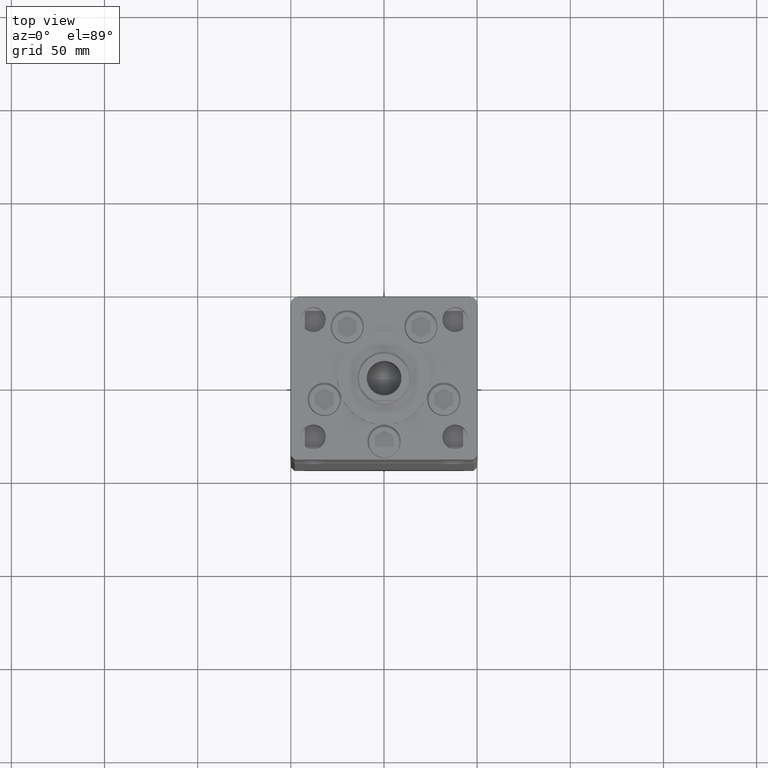
[diagram: clean part render]
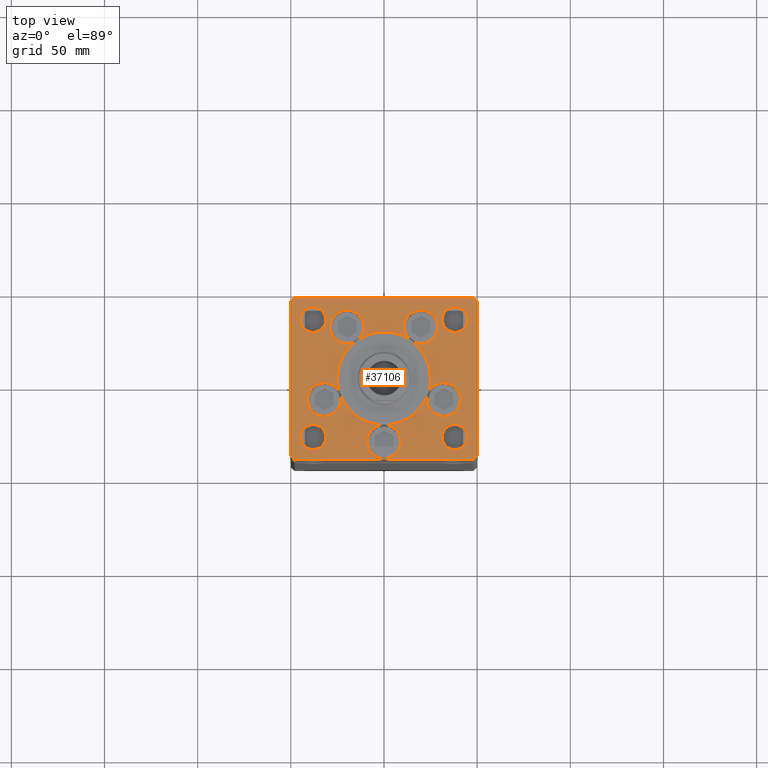
[diagram: same view with one face highlighted and labeled with its STEP entity id]
A machine part, top view. The second image highlights one B-rep face of the part: STEP entity #37106.
In plain terms, the highlighted planar face has unit normal (0, 0, 1).
Its self-contained STEP definition (entity closure, byte-faithful):
#187 = LINE ( 'NONE', #32982, #38773 ) ;
#683 = VECTOR ( 'NONE', #42307, 1000.000000000000000 ) ;
#785 = DIRECTION ( 'NONE',  ( 0.000000000000000000, 0.000000000000000000, 1.000000000000000000 ) ) ;
#903 = ORIENTED_EDGE ( 'NONE', *, *, #35366, .F. ) ;
#1038 = VERTEX_POINT ( 'NONE', #23944 ) ;
#1337 = LINE ( 'NONE', #5392, #2627 ) ;
#1735 = DIRECTION ( 'NONE',  ( 0.000000000000000000, 0.000000000000000000, 1.000000000000000000 ) ) ;
#1873 = CARTESIAN_POINT ( 'NONE',  ( -32.05550741379015989, -11.33333333333332860, 0.000000000000000000 ) ) ;
#1930 = CARTESIAN_POINT ( 'NONE',  ( 0.000000000000000000, -6.938893903907228378E-15, 0.000000000000000000 ) ) ;
#2221 = AXIS2_PLACEMENT_3D ( 'NONE', #42749, #37213, #29153 ) ;
#2416 = DIRECTION ( 'NONE',  ( 0.000000000000000000, 0.000000000000000000, 1.000000000000000000 ) ) ;
#2627 = VECTOR ( 'NONE', #50515, 1000.000000000000000 ) ;
#2665 = ORIENTED_EDGE ( 'NONE', *, *, #19546, .T. ) ;
#2676 = CARTESIAN_POINT ( 'NONE',  ( 44.75000000000000711, -31.50000000000000711, 0.000000000000000000 ) ) ;
#2713 = AXIS2_PLACEMENT_3D ( 'NONE', #22474, #14391, #26773 ) ;
#2918 = DIRECTION ( 'NONE',  ( -1.000000000000000000, 0.000000000000000000, 0.000000000000000000 ) ) ;
#2945 = ORIENTED_EDGE ( 'NONE', *, *, #50621, .F. ) ;
#3041 = VERTEX_POINT ( 'NONE', #15536 ) ;
#3121 = DIRECTION ( 'NONE',  ( 0.000000000000000000, 0.000000000000000000, 1.000000000000000000 ) ) ;
#3254 = CARTESIAN_POINT ( 'NONE',  ( -25.00000000000000000, -6.938893903907228378E-15, 0.000000000000000000 ) ) ;
#3648 = CARTESIAN_POINT ( 'NONE',  ( 38.00000000000000000, 31.50000000000000000, 0.000000000000000000 ) ) ;
#3977 = DIRECTION ( 'NONE',  ( 0.000000000000000000, 0.000000000000000000, 1.000000000000000000 ) ) ;
#4172 = CIRCLE ( 'NONE', #4205, 9.000000000000001776 ) ;
#4205 = AXIS2_PLACEMENT_3D ( 'NONE', #10675, #23051, #27088 ) ;
#4346 = EDGE_CURVE ( 'NONE', #30696, #17513, #26737, .T. ) ;
#4392 = EDGE_CURVE ( 'NONE', #50569, #3041, #30744, .T. ) ;
#4401 = FACE_BOUND ( 'NONE', #27201, .T. ) ;
#4457 = ORIENTED_EDGE ( 'NONE', *, *, #17597, .F. ) ;
#4492 = DIRECTION ( 'NONE',  ( -1.000000000000000000, -2.891205793294678326E-16, 0.000000000000000000 ) ) ;
#4815 = CARTESIAN_POINT ( 'NONE',  ( -23.05550741379015633, -11.33333333333332860, 0.000000000000000000 ) ) ;
#4838 = AXIS2_PLACEMENT_3D ( 'NONE', #12989, #13250, #29645 ) ;
#5063 = VECTOR ( 'NONE', #6584, 1000.000000000000000 ) ;
#5183 = AXIS2_PLACEMENT_3D ( 'NONE', #1873, #18288, #17232 ) ;
#5392 = CARTESIAN_POINT ( 'NONE',  ( -50.00000000000000000, -41.50000000000004263, 0.000000000000000000 ) ) ;
#5918 = DIRECTION ( 'NONE',  ( 1.000000000000000000, 0.000000000000000000, 0.000000000000000000 ) ) ;
#5967 = EDGE_LOOP ( 'NONE', ( #26853, #52229 ) ) ;
#5986 = DIRECTION ( 'NONE',  ( 1.000000000000000000, 0.000000000000000000, 0.000000000000000000 ) ) ;
#6526 = CIRCLE ( 'NONE', #28813, 25.00000000000000000 ) ;
#6584 = DIRECTION ( 'NONE',  ( 1.000000000000000000, 1.156482317317871331E-15, 0.000000000000000000 ) ) ;
#7155 = DIRECTION ( 'NONE',  ( 1.000000000000000000, 0.000000000000000000, 0.000000000000000000 ) ) ;
#7204 = CARTESIAN_POINT ( 'NONE',  ( 28.82068048781374969, 27.62499999999998934, 0.000000000000000000 ) ) ;
#7380 = DIRECTION ( 'NONE',  ( 0.000000000000000000, 0.000000000000000000, 1.000000000000000000 ) ) ;
#7449 = CARTESIAN_POINT ( 'NONE',  ( -31.25000000000000711, -31.50000000000000711, 0.000000000000000000 ) ) ;
#7614 = DIRECTION ( 'NONE',  ( 0.7071067811865474617, 0.7071067811865474617, 0.000000000000000000 ) ) ;
#7661 = CIRCLE ( 'NONE', #24834, 9.000000000000001776 ) ;
#8187 = CARTESIAN_POINT ( 'NONE',  ( 31.25000000000000000, 31.50000000000000000, 0.000000000000000000 ) ) ;
#8635 = ORIENTED_EDGE ( 'NONE', *, *, #52923, .F. ) ;
#9384 = CARTESIAN_POINT ( 'NONE',  ( -41.05550741379015989, -11.33333333333332682, 0.000000000000000000 ) ) ;
#9794 = CIRCLE ( 'NONE', #22703, 6.749999999999999112 ) ;
#9917 = EDGE_CURVE ( 'NONE', #29590, #42992, #45315, .T. ) ;
#10021 = ORIENTED_EDGE ( 'NONE', *, *, #38461, .T. ) ;
#10154 = AXIS2_PLACEMENT_3D ( 'NONE', #49462, #37125, #11859 ) ;
#10675 = CARTESIAN_POINT ( 'NONE',  ( 32.05550741379015989, -11.33333333333332860, 0.000000000000000000 ) ) ;
#11115 = CARTESIAN_POINT ( 'NONE',  ( 0.000000000000000000, -34.00000000000000000, 0.000000000000000000 ) ) ;
#11283 = CARTESIAN_POINT ( 'NONE',  ( -48.00000000000000000, 43.49999999999997158, 0.000000000000000000 ) ) ;
#11372 = CARTESIAN_POINT ( 'NONE',  ( 0.000000000000000000, -6.938893903907228378E-15, 0.000000000000000000 ) ) ;
#11414 = DIRECTION ( 'NONE',  ( 0.000000000000000000, 0.000000000000000000, 1.000000000000000000 ) ) ;
#11725 = AXIS2_PLACEMENT_3D ( 'NONE', #1930, #27453, #22902 ) ;
#11781 = CARTESIAN_POINT ( 'NONE',  ( -50.00000000000000000, -41.50000000000004263, 0.000000000000000000 ) ) ;
#11859 = DIRECTION ( 'NONE',  ( -1.000000000000000000, 0.000000000000000000, 0.000000000000000000 ) ) ;
#11973 = VERTEX_POINT ( 'NONE', #36226 ) ;
#12154 = CIRCLE ( 'NONE', #18160, 25.00000000000000000 ) ;
#12302 = EDGE_LOOP ( 'NONE', ( #52359, #10021, #39088, #33288, #2665, #29705, #32081, #28448 ) ) ;
#12469 = EDGE_CURVE ( 'NONE', #43314, #31940, #7661, .T. ) ;
#12579 = DIRECTION ( 'NONE',  ( 1.000000000000000000, 0.000000000000000000, 0.000000000000000000 ) ) ;
#12841 = CIRCLE ( 'NONE', #38575, 25.00000000000000000 ) ;
#12885 = CIRCLE ( 'NONE', #42914, 6.749999999999999112 ) ;
#12895 = DIRECTION ( 'NONE',  ( 0.000000000000000000, 0.000000000000000000, 1.000000000000000000 ) ) ;
#12989 = CARTESIAN_POINT ( 'NONE',  ( 0.000000000000000000, -34.00000000000000000, 0.000000000000000000 ) ) ;
#13153 = VERTEX_POINT ( 'NONE', #39905 ) ;
#13250 = DIRECTION ( 'NONE',  ( 0.000000000000000000, 0.000000000000000000, 1.000000000000000000 ) ) ;
#13517 = CARTESIAN_POINT ( 'NONE',  ( -44.75000000000000000, 31.50000000000000000, 0.000000000000000000 ) ) ;
#13552 = CARTESIAN_POINT ( 'NONE',  ( -50.00000000000000711, 41.49999999999999289, 0.000000000000000000 ) ) ;
#14269 = CIRCLE ( 'NONE', #4838, 9.000000000000000000 ) ;
#14391 = DIRECTION ( 'NONE',  ( 0.000000000000000000, 0.000000000000000000, 1.000000000000000000 ) ) ;
#14542 = EDGE_CURVE ( 'NONE', #49208, #40339, #15425, .T. ) ;
#14911 = CIRCLE ( 'NONE', #43203, 9.000000000000001776 ) ;
#15310 = VERTEX_POINT ( 'NONE', #7204 ) ;
#15313 = CARTESIAN_POINT ( 'NONE',  ( 38.00000000000000000, 31.50000000000000000, 0.000000000000000000 ) ) ;
#15327 = CARTESIAN_POINT ( 'NONE',  ( 32.05550741379015989, -11.33333333333332860, 0.000000000000000000 ) ) ;
#15425 = CIRCLE ( 'NONE', #52346, 9.000000000000000000 ) ;
#15536 = CARTESIAN_POINT ( 'NONE',  ( -44.75000000000000711, -31.50000000000000711, 0.000000000000000000 ) ) ;
#15693 = AXIS2_PLACEMENT_3D ( 'NONE', #17923, #18454, #34309 ) ;
#15979 = DIRECTION ( 'NONE',  ( -0.000000000000000000, 0.000000000000000000, 1.000000000000000000 ) ) ;
#16165 = CARTESIAN_POINT ( 'NONE',  ( 23.57022603955158502, -8.333333333333332149, 0.000000000000000000 ) ) ;
#16196 = CIRCLE ( 'NONE', #10154, 6.749999999999999112 ) ;
#16230 = CARTESIAN_POINT ( 'NONE',  ( 48.00000000000000711, -43.49999999999992184, 0.000000000000000000 ) ) ;
#16247 = FACE_BOUND ( 'NONE', #5967, .T. ) ;
#16434 = VECTOR ( 'NONE', #27487, 999.9999999999998863 ) ;
#16511 = CARTESIAN_POINT ( 'NONE',  ( 50.00000000000000000, 41.50000000000000711, 0.000000000000000000 ) ) ;
#16676 = ORIENTED_EDGE ( 'NONE', *, *, #37301, .T. ) ;
#16863 = EDGE_CURVE ( 'NONE', #30968, #23896, #44411, .T. ) ;
#16947 = CARTESIAN_POINT ( 'NONE',  ( -19.82068048781374969, 27.62499999999998934, 0.000000000000000000 ) ) ;
#17232 = DIRECTION ( 'NONE',  ( 1.000000000000000000, 0.000000000000000000, 0.000000000000000000 ) ) ;
#17243 = ORIENTED_EDGE ( 'NONE', *, *, #44291, .F. ) ;
#17262 = DIRECTION ( 'NONE',  ( 0.000000000000000000, 0.000000000000000000, 1.000000000000000000 ) ) ;
#17513 = VERTEX_POINT ( 'NONE', #11781 ) ;
#17597 = EDGE_CURVE ( 'NONE', #25506, #49711, #14911, .T. ) ;
#17923 = CARTESIAN_POINT ( 'NONE',  ( 19.82068048781374969, 27.62499999999998934, 0.000000000000000000 ) ) ;
#17936 = EDGE_CURVE ( 'NONE', #47641, #11973, #45802, .T. ) ;
#18152 = AXIS2_PLACEMENT_3D ( 'NONE', #31970, #53175, #20407 ) ;
#18160 = AXIS2_PLACEMENT_3D ( 'NONE', #11372, #48431, #40113 ) ;
#18288 = DIRECTION ( 'NONE',  ( 0.000000000000000000, 0.000000000000000000, 1.000000000000000000 ) ) ;
#18437 = CARTESIAN_POINT ( 'NONE',  ( -48.00000000000000711, -43.50000000000002842, 0.000000000000000000 ) ) ;
#18454 = DIRECTION ( 'NONE',  ( 0.000000000000000000, 0.000000000000000000, 1.000000000000000000 ) ) ;
#18467 = VERTEX_POINT ( 'NONE', #16511 ) ;
#18642 = DIRECTION ( 'NONE',  ( -1.000000000000000000, 0.000000000000000000, 0.000000000000000000 ) ) ;
#19190 = CARTESIAN_POINT ( 'NONE',  ( -38.00000000000000711, -31.50000000000000711, 0.000000000000000000 ) ) ;
#19368 = VERTEX_POINT ( 'NONE', #36658 ) ;
#19546 = EDGE_CURVE ( 'NONE', #18467, #19563, #26437, .T. ) ;
#19563 = VERTEX_POINT ( 'NONE', #35284 ) ;
#19833 = AXIS2_PLACEMENT_3D ( 'NONE', #25842, #42211, #5918 ) ;
#19859 = ORIENTED_EDGE ( 'NONE', *, *, #20430, .F. ) ;
#20142 = CARTESIAN_POINT ( 'NONE',  ( 31.25000000000000711, -31.50000000000000711, 0.000000000000000000 ) ) ;
#20243 = CARTESIAN_POINT ( 'NONE',  ( 9.000000000000000000, -34.00000000000000000, 0.000000000000000000 ) ) ;
#20273 = FACE_BOUND ( 'NONE', #28135, .T. ) ;
#20325 = CARTESIAN_POINT ( 'NONE',  ( -9.000000000000000000, -34.00000000000000000, 0.000000000000000000 ) ) ;
#20407 = DIRECTION ( 'NONE',  ( 1.000000000000000000, 0.000000000000000000, 0.000000000000000000 ) ) ;
#20430 = EDGE_CURVE ( 'NONE', #3041, #50569, #46464, .T. ) ;
#20759 = CARTESIAN_POINT ( 'NONE',  ( 0.000000000000000000, -34.00000000000000000, 0.000000000000000000 ) ) ;
#20916 = EDGE_CURVE ( 'NONE', #25685, #40339, #12154, .T. ) ;
#21638 = CARTESIAN_POINT ( 'NONE',  ( -14.57402977045128978, 20.31249999999999289, 0.000000000000000000 ) ) ;
#21694 = CARTESIAN_POINT ( 'NONE',  ( -19.82068048781374969, 27.62499999999998934, 0.000000000000000000 ) ) ;
#22145 = CARTESIAN_POINT ( 'NONE',  ( 50.00000000000000000, -41.49999999999992895, 0.000000000000000000 ) ) ;
#22185 = AXIS2_PLACEMENT_3D ( 'NONE', #20759, #17262, #25592 ) ;
#22447 = EDGE_CURVE ( 'NONE', #1038, #31096, #9794, .T. ) ;
#22472 = LINE ( 'NONE', #18437, #5063 ) ;
#22474 = CARTESIAN_POINT ( 'NONE',  ( -38.00000000000000711, -31.50000000000000711, 0.000000000000000000 ) ) ;
#22588 = CARTESIAN_POINT ( 'NONE',  ( 44.75000000000000000, 31.50000000000000000, 0.000000000000000000 ) ) ;
#22703 = AXIS2_PLACEMENT_3D ( 'NONE', #52617, #36237, #2918 ) ;
#22861 = ORIENTED_EDGE ( 'NONE', *, *, #17936, .F. ) ;
#22878 = CIRCLE ( 'NONE', #11725, 25.00000000000000000 ) ;
#22902 = DIRECTION ( 'NONE',  ( 1.000000000000000000, 0.000000000000000000, 0.000000000000000000 ) ) ;
#23051 = DIRECTION ( 'NONE',  ( 0.000000000000000000, 0.000000000000000000, 1.000000000000000000 ) ) ;
#23164 = CARTESIAN_POINT ( 'NONE',  ( 23.05550741379015633, -11.33333333333332682, 0.000000000000000000 ) ) ;
#23448 = CARTESIAN_POINT ( 'NONE',  ( 19.82068048781374969, 27.62499999999998934, 0.000000000000000000 ) ) ;
#23772 = EDGE_CURVE ( 'NONE', #50400, #49208, #45019, .T. ) ;
#23896 = VERTEX_POINT ( 'NONE', #22145 ) ;
#23944 = CARTESIAN_POINT ( 'NONE',  ( -31.25000000000000000, 31.50000000000000000, 0.000000000000000000 ) ) ;
#24309 = FACE_BOUND ( 'NONE', #39841, .T. ) ;
#24323 = CARTESIAN_POINT ( 'NONE',  ( -19.82068048781374969, 27.62499999999998934, 0.000000000000000000 ) ) ;
#24409 = EDGE_CURVE ( 'NONE', #19368, #30696, #31716, .T. ) ;
#24834 = AXIS2_PLACEMENT_3D ( 'NONE', #15327, #2416, #27160 ) ;
#24925 = DIRECTION ( 'NONE',  ( 0.000000000000000000, 0.000000000000000000, 1.000000000000000000 ) ) ;
#24960 = CARTESIAN_POINT ( 'NONE',  ( -32.05550741379015989, -11.33333333333332860, 0.000000000000000000 ) ) ;
#25001 = DIRECTION ( 'NONE',  ( 1.000000000000000000, 0.000000000000000000, 0.000000000000000000 ) ) ;
#25105 = FACE_BOUND ( 'NONE', #47635, .T. ) ;
#25244 = EDGE_CURVE ( 'NONE', #43314, #13153, #48537, .T. ) ;
#25427 = CARTESIAN_POINT ( 'NONE',  ( 19.82068048781374969, 27.62499999999998934, 0.000000000000000000 ) ) ;
#25463 = EDGE_CURVE ( 'NONE', #13153, #25685, #6526, .T. ) ;
#25506 = VERTEX_POINT ( 'NONE', #9384 ) ;
#25543 = ORIENTED_EDGE ( 'NONE', *, *, #40174, .F. ) ;
#25592 = DIRECTION ( 'NONE',  ( 1.000000000000000000, 0.000000000000000000, 0.000000000000000000 ) ) ;
#25610 = CIRCLE ( 'NONE', #43598, 9.000000000000000000 ) ;
#25685 = VERTEX_POINT ( 'NONE', #30875 ) ;
#25842 = CARTESIAN_POINT ( 'NONE',  ( 32.05550741379015989, -11.33333333333332860, 0.000000000000000000 ) ) ;
#25863 = ORIENTED_EDGE ( 'NONE', *, *, #32748, .F. ) ;
#25985 = CARTESIAN_POINT ( 'NONE',  ( 50.00000000000000000, -41.49999999999992895, 0.000000000000000000 ) ) ;
#26009 = VERTEX_POINT ( 'NONE', #8187 ) ;
#26329 = VERTEX_POINT ( 'NONE', #2676 ) ;
#26437 = LINE ( 'NONE', #50860, #16434 ) ;
#26524 = CARTESIAN_POINT ( 'NONE',  ( 0.000000000000000000, -6.938893903907228378E-15, 0.000000000000000000 ) ) ;
#26737 = LINE ( 'NONE', #13552, #683 ) ;
#26773 = DIRECTION ( 'NONE',  ( 1.000000000000000000, 0.000000000000000000, 0.000000000000000000 ) ) ;
#26853 = ORIENTED_EDGE ( 'NONE', *, *, #29552, .F. ) ;
#27088 = DIRECTION ( 'NONE',  ( 1.000000000000000000, 0.000000000000000000, 0.000000000000000000 ) ) ;
#27160 = DIRECTION ( 'NONE',  ( 1.000000000000000000, 0.000000000000000000, 0.000000000000000000 ) ) ;
#27201 = EDGE_LOOP ( 'NONE', ( #33815, #39832 ) ) ;
#27453 = DIRECTION ( 'NONE',  ( 0.000000000000000000, 0.000000000000000000, 1.000000000000000000 ) ) ;
#27487 = DIRECTION ( 'NONE',  ( -0.7071067811865512365, 0.7071067811865439090, 0.000000000000000000 ) ) ;
#27745 = CARTESIAN_POINT ( 'NONE',  ( -28.82068048781374969, 27.62499999999998934, 0.000000000000000000 ) ) ;
#28030 = DIRECTION ( 'NONE',  ( 0.000000000000000000, 0.000000000000000000, 1.000000000000000000 ) ) ;
#28135 = EDGE_LOOP ( 'NONE', ( #36526, #39004, #8635, #25863, #48912, #43911, #45883, #17243, #36540, #52632, #903, #38969, #42371, #22861, #44002, #4457, #31683, #46702, #25543, #49909, #52764, #2945 ) ) ;
#28341 = CIRCLE ( 'NONE', #46338, 6.749999999999999112 ) ;
#28448 = ORIENTED_EDGE ( 'NONE', *, *, #4346, .T. ) ;
#28497 = CIRCLE ( 'NONE', #36196, 9.000000000000000000 ) ;
#28813 = AXIS2_PLACEMENT_3D ( 'NONE', #32791, #785, #33591 ) ;
#29153 = DIRECTION ( 'NONE',  ( 1.000000000000000000, 0.000000000000000000, 0.000000000000000000 ) ) ;
#29411 = EDGE_CURVE ( 'NONE', #37772, #26329, #46924, .T. ) ;
#29427 = CIRCLE ( 'NONE', #15693, 8.999999999999998224 ) ;
#29480 = LINE ( 'NONE', #25985, #32568 ) ;
#29552 = EDGE_CURVE ( 'NONE', #36701, #26009, #51123, .T. ) ;
#29590 = VERTEX_POINT ( 'NONE', #20325 ) ;
#29645 = DIRECTION ( 'NONE',  ( 1.000000000000000000, 0.000000000000000000, 0.000000000000000000 ) ) ;
#29705 = ORIENTED_EDGE ( 'NONE', *, *, #50646, .T. ) ;
#29939 = EDGE_CURVE ( 'NONE', #11973, #29590, #14269, .T. ) ;
#30696 = VERTEX_POINT ( 'NONE', #35080 ) ;
#30731 = VERTEX_POINT ( 'NONE', #50645 ) ;
#30744 = CIRCLE ( 'NONE', #34151, 6.749999999999999112 ) ;
#30875 = CARTESIAN_POINT ( 'NONE',  ( 14.57402977045128623, 20.31249999999998579, 0.000000000000000000 ) ) ;
#30968 = VERTEX_POINT ( 'NONE', #37189 ) ;
#31096 = VERTEX_POINT ( 'NONE', #13517 ) ;
#31393 = CARTESIAN_POINT ( 'NONE',  ( -10.82068048781375147, 27.62499999999998934, 0.000000000000000000 ) ) ;
#31683 = ORIENTED_EDGE ( 'NONE', *, *, #44484, .F. ) ;
#31716 = LINE ( 'NONE', #11283, #44146 ) ;
#31845 = CARTESIAN_POINT ( 'NONE',  ( -23.57022603955158502, -8.333333333333332149, 0.000000000000000000 ) ) ;
#31893 = EDGE_CURVE ( 'NONE', #41459, #47641, #22878, .T. ) ;
#31940 = VERTEX_POINT ( 'NONE', #23164 ) ;
#31970 = CARTESIAN_POINT ( 'NONE',  ( -32.05550741379015989, -11.33333333333332860, 0.000000000000000000 ) ) ;
#31979 = DIRECTION ( 'NONE',  ( -0.000000000000000000, -0.000000000000000000, -1.000000000000000000 ) ) ;
#32081 = ORIENTED_EDGE ( 'NONE', *, *, #24409, .T. ) ;
#32568 = VECTOR ( 'NONE', #38319, 1000.000000000000000 ) ;
#32653 = DIRECTION ( 'NONE',  ( 1.000000000000000000, 0.000000000000000000, 0.000000000000000000 ) ) ;
#32748 = EDGE_CURVE ( 'NONE', #25685, #15310, #40922, .T. ) ;
#32789 = DIRECTION ( 'NONE',  ( 0.000000000000000000, 0.000000000000000000, 1.000000000000000000 ) ) ;
#32791 = CARTESIAN_POINT ( 'NONE',  ( 0.000000000000000000, -6.938893903907228378E-15, 0.000000000000000000 ) ) ;
#32915 = CARTESIAN_POINT ( 'NONE',  ( 0.000000000000000000, -6.938893903907228378E-15, 0.000000000000000000 ) ) ;
#32982 = CARTESIAN_POINT ( 'NONE',  ( 47.99999999999999289, 43.50000000000000000, 0.000000000000000000 ) ) ;
#33288 = ORIENTED_EDGE ( 'NONE', *, *, #38932, .T. ) ;
#33591 = DIRECTION ( 'NONE',  ( 1.000000000000000000, 0.000000000000000000, 0.000000000000000000 ) ) ;
#33815 = ORIENTED_EDGE ( 'NONE', *, *, #45152, .T. ) ;
#34151 = AXIS2_PLACEMENT_3D ( 'NONE', #19190, #28030, #35572 ) ;
#34309 = DIRECTION ( 'NONE',  ( 1.000000000000000000, 0.000000000000000000, 0.000000000000000000 ) ) ;
#35080 = CARTESIAN_POINT ( 'NONE',  ( -50.00000000000000711, 41.49999999999999289, 0.000000000000000000 ) ) ;
#35284 = CARTESIAN_POINT ( 'NONE',  ( 47.99999999999999289, 43.50000000000000000, 0.000000000000000000 ) ) ;
#35366 = EDGE_CURVE ( 'NONE', #42992, #11973, #25610, .T. ) ;
#35572 = DIRECTION ( 'NONE',  ( 1.000000000000000000, 0.000000000000000000, 0.000000000000000000 ) ) ;
#35790 = AXIS2_PLACEMENT_3D ( 'NONE', #46133, #42121, #41057 ) ;
#36046 = EDGE_CURVE ( 'NONE', #37252, #25685, #43628, .T. ) ;
#36196 = AXIS2_PLACEMENT_3D ( 'NONE', #21694, #24925, #41306 ) ;
#36226 = CARTESIAN_POINT ( 'NONE',  ( 0.000000000000000000, -25.00000000000000000, 0.000000000000000000 ) ) ;
#36237 = DIRECTION ( 'NONE',  ( -0.000000000000000000, -0.000000000000000000, -1.000000000000000000 ) ) ;
#36446 = DIRECTION ( 'NONE',  ( 0.000000000000000000, 0.000000000000000000, 1.000000000000000000 ) ) ;
#36526 = ORIENTED_EDGE ( 'NONE', *, *, #20916, .F. ) ;
#36540 = ORIENTED_EDGE ( 'NONE', *, *, #12469, .F. ) ;
#36658 = CARTESIAN_POINT ( 'NONE',  ( -48.00000000000000000, 43.49999999999997158, 0.000000000000000000 ) ) ;
#36701 = VERTEX_POINT ( 'NONE', #22588 ) ;
#37106 = ADVANCED_FACE ( 'NONE', ( #20273, #25105, #16247, #24309, #41215, #4401 ), #44694, .T. ) ;
#37125 = DIRECTION ( 'NONE',  ( -0.000000000000000000, -0.000000000000000000, -1.000000000000000000 ) ) ;
#37189 = CARTESIAN_POINT ( 'NONE',  ( 48.00000000000000711, -43.49999999999992184, 0.000000000000000000 ) ) ;
#37213 = DIRECTION ( 'NONE',  ( 0.000000000000000000, 0.000000000000000000, 1.000000000000000000 ) ) ;
#37252 = VERTEX_POINT ( 'NONE', #49803 ) ;
#37301 = EDGE_CURVE ( 'NONE', #31096, #1038, #16196, .T. ) ;
#37507 = AXIS2_PLACEMENT_3D ( 'NONE', #23448, #47343, #5986 ) ;
#37707 = CIRCLE ( 'NONE', #46271, 25.00000000000000000 ) ;
#37772 = VERTEX_POINT ( 'NONE', #20142 ) ;
#38027 = EDGE_CURVE ( 'NONE', #43888, #43314, #4172, .T. ) ;
#38319 = DIRECTION ( 'NONE',  ( 0.000000000000000000, 1.000000000000000000, 0.000000000000000000 ) ) ;
#38461 = EDGE_CURVE ( 'NONE', #30731, #30968, #22472, .T. ) ;
#38575 = AXIS2_PLACEMENT_3D ( 'NONE', #26524, #32789, #42885 ) ;
#38694 = CIRCLE ( 'NONE', #18152, 9.000000000000001776 ) ;
#38773 = VECTOR ( 'NONE', #4492, 1000.000000000000000 ) ;
#38932 = EDGE_CURVE ( 'NONE', #23896, #18467, #29480, .T. ) ;
#38969 = ORIENTED_EDGE ( 'NONE', *, *, #9917, .F. ) ;
#39004 = ORIENTED_EDGE ( 'NONE', *, *, #36046, .F. ) ;
#39088 = ORIENTED_EDGE ( 'NONE', *, *, #16863, .T. ) ;
#39123 = AXIS2_PLACEMENT_3D ( 'NONE', #3648, #36446, #7155 ) ;
#39166 = EDGE_CURVE ( 'NONE', #11973, #43314, #37707, .T. ) ;
#39832 = ORIENTED_EDGE ( 'NONE', *, *, #29411, .T. ) ;
#39841 = EDGE_LOOP ( 'NONE', ( #45958, #19859 ) ) ;
#39905 = CARTESIAN_POINT ( 'NONE',  ( 25.00000000000000000, -3.877276906038844941E-15, 0.000000000000000000 ) ) ;
#40113 = DIRECTION ( 'NONE',  ( 1.000000000000000000, 0.000000000000000000, 0.000000000000000000 ) ) ;
#40174 = EDGE_CURVE ( 'NONE', #40339, #41459, #12841, .T. ) ;
#40339 = VERTEX_POINT ( 'NONE', #21638 ) ;
#40398 = DIRECTION ( 'NONE',  ( 0.000000000000000000, 0.000000000000000000, 1.000000000000000000 ) ) ;
#40417 = DIRECTION ( 'NONE',  ( 1.000000000000000000, 0.000000000000000000, 0.000000000000000000 ) ) ;
#40922 = CIRCLE ( 'NONE', #37507, 8.999999999999998224 ) ;
#41057 = DIRECTION ( 'NONE',  ( -1.000000000000000000, 0.000000000000000000, 0.000000000000000000 ) ) ;
#41215 = FACE_OUTER_BOUND ( 'NONE', #12302, .T. ) ;
#41306 = DIRECTION ( 'NONE',  ( 1.000000000000000000, 0.000000000000000000, 0.000000000000000000 ) ) ;
#41310 = CIRCLE ( 'NONE', #19833, 9.000000000000001776 ) ;
#41459 = VERTEX_POINT ( 'NONE', #3254 ) ;
#41543 = EDGE_CURVE ( 'NONE', #49711, #47641, #45472, .T. ) ;
#41624 = ORIENTED_EDGE ( 'NONE', *, *, #22447, .T. ) ;
#41925 = AXIS2_PLACEMENT_3D ( 'NONE', #25427, #1735, #50379 ) ;
#42121 = DIRECTION ( 'NONE',  ( -0.000000000000000000, -0.000000000000000000, -1.000000000000000000 ) ) ;
#42211 = DIRECTION ( 'NONE',  ( 0.000000000000000000, 0.000000000000000000, 1.000000000000000000 ) ) ;
#42290 = CARTESIAN_POINT ( 'NONE',  ( 38.00000000000000711, -31.50000000000000711, 0.000000000000000000 ) ) ;
#42307 = DIRECTION ( 'NONE',  ( 8.360113137237620037E-17, -1.000000000000000000, 0.000000000000000000 ) ) ;
#42371 = ORIENTED_EDGE ( 'NONE', *, *, #29939, .F. ) ;
#42435 = EDGE_CURVE ( 'NONE', #26009, #36701, #12885, .T. ) ;
#42525 = CARTESIAN_POINT ( 'NONE',  ( 41.05550741379015989, -11.33333333333332860, 0.000000000000000000 ) ) ;
#42749 = CARTESIAN_POINT ( 'NONE',  ( 0.000000000000000000, -6.938893903907228378E-15, 0.000000000000000000 ) ) ;
#42885 = DIRECTION ( 'NONE',  ( 1.000000000000000000, 0.000000000000000000, 0.000000000000000000 ) ) ;
#42914 = AXIS2_PLACEMENT_3D ( 'NONE', #15313, #48056, #52371 ) ;
#42992 = VERTEX_POINT ( 'NONE', #20243 ) ;
#43203 = AXIS2_PLACEMENT_3D ( 'NONE', #24960, #3977, #12579 ) ;
#43314 = VERTEX_POINT ( 'NONE', #16165 ) ;
#43440 = EDGE_CURVE ( 'NONE', #17513, #30731, #1337, .T. ) ;
#43598 = AXIS2_PLACEMENT_3D ( 'NONE', #11115, #40398, #53014 ) ;
#43628 = CIRCLE ( 'NONE', #41925, 8.999999999999998224 ) ;
#43888 = VERTEX_POINT ( 'NONE', #42525 ) ;
#43911 = ORIENTED_EDGE ( 'NONE', *, *, #25244, .F. ) ;
#44002 = ORIENTED_EDGE ( 'NONE', *, *, #41543, .F. ) ;
#44043 = DIRECTION ( 'NONE',  ( -0.7071067811865536790, -0.7071067811865414665, 0.000000000000000000 ) ) ;
#44146 = VECTOR ( 'NONE', #44043, 1000.000000000000000 ) ;
#44179 = DIRECTION ( 'NONE',  ( 1.000000000000000000, 0.000000000000000000, 0.000000000000000000 ) ) ;
#44291 = EDGE_CURVE ( 'NONE', #31940, #43888, #41310, .T. ) ;
#44411 = LINE ( 'NONE', #16230, #45628 ) ;
#44428 = CARTESIAN_POINT ( 'NONE',  ( 0.000000000000000000, 0.000000000000000000, 0.000000000000000000 ) ) ;
#44484 = EDGE_CURVE ( 'NONE', #47641, #25506, #38694, .T. ) ;
#44694 = PLANE ( 'NONE',  #48769 ) ;
#44912 = AXIS2_PLACEMENT_3D ( 'NONE', #24323, #11414, #44179 ) ;
#44915 = AXIS2_PLACEMENT_3D ( 'NONE', #47195, #3121, #47977 ) ;
#45019 = CIRCLE ( 'NONE', #44912, 9.000000000000000000 ) ;
#45152 = EDGE_CURVE ( 'NONE', #26329, #37772, #28341, .T. ) ;
#45315 = CIRCLE ( 'NONE', #22185, 9.000000000000000000 ) ;
#45472 = CIRCLE ( 'NONE', #5183, 9.000000000000001776 ) ;
#45628 = VECTOR ( 'NONE', #7614, 1000.000000000000114 ) ;
#45802 = CIRCLE ( 'NONE', #44915, 25.00000000000000000 ) ;
#45883 = ORIENTED_EDGE ( 'NONE', *, *, #38027, .F. ) ;
#45958 = ORIENTED_EDGE ( 'NONE', *, *, #4392, .F. ) ;
#46133 = CARTESIAN_POINT ( 'NONE',  ( 38.00000000000000711, -31.50000000000000711, 0.000000000000000000 ) ) ;
#46271 = AXIS2_PLACEMENT_3D ( 'NONE', #32915, #7380, #32653 ) ;
#46338 = AXIS2_PLACEMENT_3D ( 'NONE', #42290, #31979, #18642 ) ;
#46464 = CIRCLE ( 'NONE', #2713, 6.749999999999999112 ) ;
#46702 = ORIENTED_EDGE ( 'NONE', *, *, #31893, .F. ) ;
#46924 = CIRCLE ( 'NONE', #35790, 6.749999999999999112 ) ;
#47195 = CARTESIAN_POINT ( 'NONE',  ( 0.000000000000000000, -6.938893903907228378E-15, 0.000000000000000000 ) ) ;
#47343 = DIRECTION ( 'NONE',  ( 0.000000000000000000, 0.000000000000000000, 1.000000000000000000 ) ) ;
#47635 = EDGE_LOOP ( 'NONE', ( #41624, #16676 ) ) ;
#47641 = VERTEX_POINT ( 'NONE', #31845 ) ;
#47977 = DIRECTION ( 'NONE',  ( 1.000000000000000000, 0.000000000000000000, 0.000000000000000000 ) ) ;
#48056 = DIRECTION ( 'NONE',  ( 0.000000000000000000, 0.000000000000000000, 1.000000000000000000 ) ) ;
#48431 = DIRECTION ( 'NONE',  ( 0.000000000000000000, 0.000000000000000000, 1.000000000000000000 ) ) ;
#48537 = CIRCLE ( 'NONE', #2221, 25.00000000000000000 ) ;
#48769 = AXIS2_PLACEMENT_3D ( 'NONE', #44428, #15979, #40417 ) ;
#48912 = ORIENTED_EDGE ( 'NONE', *, *, #25463, .F. ) ;
#49208 = VERTEX_POINT ( 'NONE', #27745 ) ;
#49462 = CARTESIAN_POINT ( 'NONE',  ( -38.00000000000000000, 31.50000000000000000, 0.000000000000000000 ) ) ;
#49711 = VERTEX_POINT ( 'NONE', #4815 ) ;
#49803 = CARTESIAN_POINT ( 'NONE',  ( 10.82068048781375147, 27.62499999999998934, 0.000000000000000000 ) ) ;
#49909 = ORIENTED_EDGE ( 'NONE', *, *, #14542, .F. ) ;
#50379 = DIRECTION ( 'NONE',  ( 1.000000000000000000, 0.000000000000000000, 0.000000000000000000 ) ) ;
#50400 = VERTEX_POINT ( 'NONE', #31393 ) ;
#50515 = DIRECTION ( 'NONE',  ( 0.7071067811865487940, -0.7071067811865463515, 0.000000000000000000 ) ) ;
#50569 = VERTEX_POINT ( 'NONE', #7449 ) ;
#50621 = EDGE_CURVE ( 'NONE', #40339, #50400, #28497, .T. ) ;
#50645 = CARTESIAN_POINT ( 'NONE',  ( -48.00000000000000711, -43.50000000000002842, 0.000000000000000000 ) ) ;
#50646 = EDGE_CURVE ( 'NONE', #19563, #19368, #187, .T. ) ;
#50860 = CARTESIAN_POINT ( 'NONE',  ( 50.00000000000000000, 41.50000000000000711, 0.000000000000000000 ) ) ;
#51123 = CIRCLE ( 'NONE', #39123, 6.749999999999999112 ) ;
#52229 = ORIENTED_EDGE ( 'NONE', *, *, #42435, .F. ) ;
#52346 = AXIS2_PLACEMENT_3D ( 'NONE', #16947, #12895, #25001 ) ;
#52359 = ORIENTED_EDGE ( 'NONE', *, *, #43440, .T. ) ;
#52371 = DIRECTION ( 'NONE',  ( 1.000000000000000000, 0.000000000000000000, 0.000000000000000000 ) ) ;
#52617 = CARTESIAN_POINT ( 'NONE',  ( -38.00000000000000000, 31.50000000000000000, 0.000000000000000000 ) ) ;
#52632 = ORIENTED_EDGE ( 'NONE', *, *, #39166, .F. ) ;
#52764 = ORIENTED_EDGE ( 'NONE', *, *, #23772, .F. ) ;
#52923 = EDGE_CURVE ( 'NONE', #15310, #37252, #29427, .T. ) ;
#53014 = DIRECTION ( 'NONE',  ( 1.000000000000000000, 0.000000000000000000, 0.000000000000000000 ) ) ;
#53175 = DIRECTION ( 'NONE',  ( 0.000000000000000000, 0.000000000000000000, 1.000000000000000000 ) ) ;